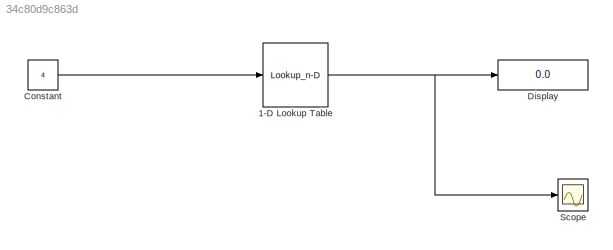
MODEL slx_34c80d9c863d
KIND model
CONFIG AbsTol = auto
CONFIG EnableMultiTasking = off
CONFIG FixedStep = auto
CONFIG MaxStep = auto
CONFIG MinStep = auto
CONFIG RelTol = 1e-3
CONFIG SampleTimeConstraint = Unconstrained
CONFIG SolverName = VariableStepAuto
CONFIG StartTime = 0.0
CONFIG StopTime = 10.0
WORKSPACE source: mxarray member
WORKSPACE v = [-25.3 -23.4 -21.2 -19.5 -17.6 -15.4 -13.2 -11.8 -9.2 -7.4 -5 0 ... (26 elements, 1x26)]
BLOCK [Lookup_n-D] 1-D Lookup Table
  BreakpointsForDimension1 = [10,20,30,40,50,60,70,80,90]
  InputPortMap = u0
  InternalRulePriority = Speed
  NumberOfTableDimensions = 1
  Ports = [1, 1]
  RndMeth = Simplest
  Table = [10,20,30,40,50,60,70,80,90]
BLOCK [Constant] Constant
  Value = 4
BLOCK [Display] Display
  Decimation = 1
  Ports = [1]
BLOCK [Scope] Scope
  Floating = off
  NumInputPorts = 1
  Ports = [1]
  ScopeSpecificationString = Simulink.scopes.TimeScopeBlockCfg('CurrentConfiguration', extmgr.ConfigurationSet(extmgr.Configuration('Core','General UI',true),extmgr.Configuration('Core','Source UI',true),extmgr.Configuration('Sources','WiredSimulink',true),extmgr.Configuration('Visuals','Time Domain',true,'SerializedDisplays',{struct('MinYLimReal','0.93381','MaxYLimReal','1.06714','YLabelReal','','MinYLimMag','0.93381','MaxYL...<+1388ch>
NET 1-D Lookup Table:1 -> Display:1, Scope:1
LINE Constant:1 -> 1-D Lookup Table:1
note: NET lines group one-source signal fan-out (src -> all destinations, sorted); 1:1 wires keep LINE
